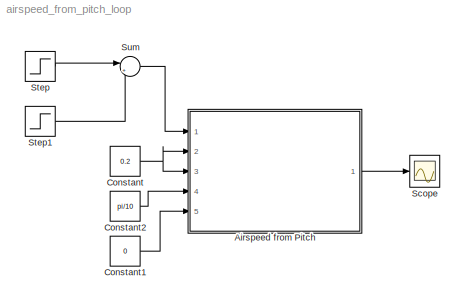
MODEL airspeed_from_pitch_loop
KIND model
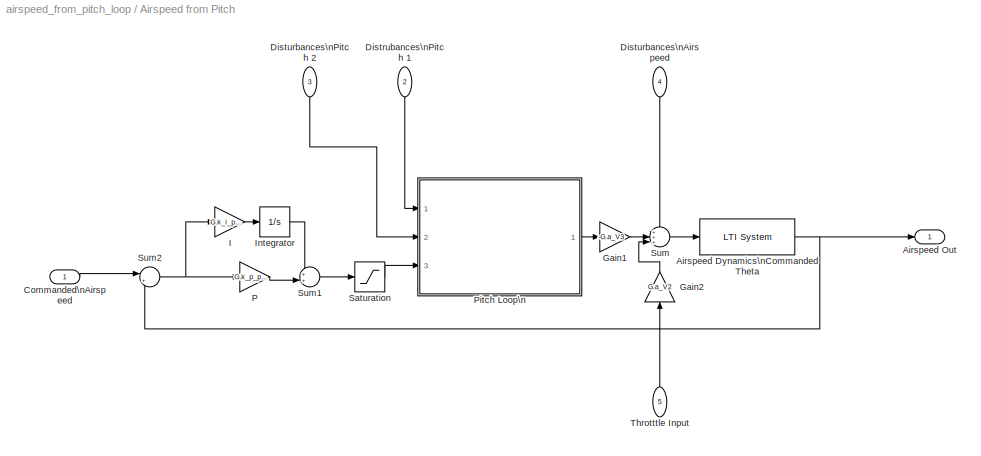
BLOCK [SubSystem] Airspeed from Pitch
  Ports = [5, 1]
  RequestExecContextInheritance = off
  SID = 60
BLOCK [Reference] Airspeed from Pitch/Airspeed Dynamics\nCommanded Theta  REF=cstblocks/LTI System
  IC = []
  Ports = [1, 1]
  SID = 31
  SourceBlock = cstblocks/LTI System
  SourceProductBaseCode = CT
  SourceProductName = Control System Toolbox
  SourceType = LTI Block
  sys = T_Va
BLOCK [Outport] Airspeed from Pitch/Airspeed Out
  IconDisplay = Port number
  SID = 70
BLOCK [Inport] Airspeed from Pitch/Commanded\nAirspeed
  IconDisplay = Port number
  SID = 66
BLOCK [Inport] Airspeed from Pitch/Distrubances\nPitch 1
  IconDisplay = Port number
  Port = 2
  SID = 67
BLOCK [Inport] Airspeed from Pitch/Disturbances\nAirspeed
  IconDisplay = Port number
  Port = 4
  SID = 69
BLOCK [Inport] Airspeed from Pitch/Disturbances\nPitch 2
  IconDisplay = Port number
  Port = 3
  SID = 68
BLOCK [Gain] Airspeed from Pitch/Gain1
  Gain = -G.a_V3
  OutDataTypeStr = Inherit: Inherit via internal rule
  ParamDataTypeStr = Inherit: Inherit via internal rule
  SID = 79
  SaturateOnIntegerOverflow = off
BLOCK [Gain] Airspeed from Pitch/Gain2
  Gain = G.a_V2
  OutDataTypeStr = Inherit: Inherit via internal rule
  ParamDataTypeStr = Inherit: Inherit via internal rule
  SID = 81
  SaturateOnIntegerOverflow = off
BLOCK [Gain] Airspeed from Pitch/I
  Gain = G.k_i_pitch_airspeed
  OutDataTypeStr = Inherit: Inherit via internal rule
  ParamDataTypeStr = Inherit: Inherit via internal rule
  SID = 36
  SaturateOnIntegerOverflow = off
BLOCK [Integrator] Airspeed from Pitch/Integrator
  Ports = [1, 1]
  SID = 37
BLOCK [Gain] Airspeed from Pitch/P
  Gain = G.k_p_pitch_airspeed
  OutDataTypeStr = Inherit: Inherit via internal rule
  ParamDataTypeStr = Inherit: Inherit via internal rule
  SID = 35
  SaturateOnIntegerOverflow = off
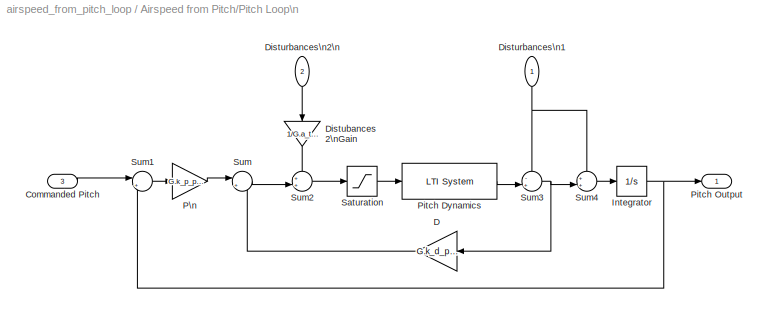
BLOCK [SubSystem] Airspeed from Pitch/Pitch Loop\n
  Ports = [3, 1]
  RequestExecContextInheritance = off
  SID = 21
BLOCK [Inport] Airspeed from Pitch/Pitch Loop\n/Commanded Pitch
  IconDisplay = Port number
  Port = 3
  SID = 23
BLOCK [Gain] Airspeed from Pitch/Pitch Loop\n/D
  Gain = G.k_d_pitch
  OutDataTypeStr = Inherit: Inherit via internal rule
  ParamDataTypeStr = Inherit: Inherit via internal rule
  SID = 2
  SaturateOnIntegerOverflow = off
BLOCK [Gain] Airspeed from Pitch/Pitch Loop\n/Distubances 2\nGain
  Gain = 1/G.a_theta3
  OutDataTypeStr = Inherit: Inherit via internal rule
  ParamDataTypeStr = Inherit: Inherit via internal rule
  SID = 14
  SaturateOnIntegerOverflow = off
BLOCK [Inport] Airspeed from Pitch/Pitch Loop\n/Disturbances\n1
  IconDisplay = Port number
  SID = 26
BLOCK [Inport] Airspeed from Pitch/Pitch Loop\n/Disturbances\n2\n
  IconDisplay = Port number
  Port = 2
  SID = 22
BLOCK [Integrator] Airspeed from Pitch/Pitch Loop\n/Integrator
  Ports = [1, 1]
  SID = 4
BLOCK [Gain] Airspeed from Pitch/Pitch Loop\n/P\n
  Gain = G.k_p_pitch
  OutDataTypeStr = Inherit: Inherit via internal rule
  ParamDataTypeStr = Inherit: Inherit via internal rule
  SID = 6
  SaturateOnIntegerOverflow = off
BLOCK [Reference] Airspeed from Pitch/Pitch Loop\n/Pitch Dynamics  REF=cstblocks/LTI System
  IC = []
  Ports = [1, 1]
  SID = 1
  SourceBlock = cstblocks/LTI System
  SourceProductBaseCode = CT
  SourceProductName = Control System Toolbox
  SourceType = LTI Block
  sys = T_theta_dot_delta_e
BLOCK [Outport] Airspeed from Pitch/Pitch Loop\n/Pitch Output
  IconDisplay = Port number
  SID = 24
BLOCK [Saturate] Airspeed from Pitch/Pitch Loop\n/Saturation
  InputPortMap = u0
  LowerLimit = -G.delta_a_max
  Ports = [1, 1]
  SID = 20
  UpperLimit = G.delta_e_max
BLOCK [Sum] Airspeed from Pitch/Pitch Loop\n/Sum
  IconShape = round
  InputSameDT = off
  Inputs = |+-
  OutDataTypeStr = Inherit: Inherit via internal rule
  Ports = [2, 1]
  SID = 3
  SaturateOnIntegerOverflow = off
BLOCK [Sum] Airspeed from Pitch/Pitch Loop\n/Sum1
  IconShape = round
  InputSameDT = off
  Inputs = |+-
  OutDataTypeStr = Inherit: Inherit via internal rule
  Ports = [2, 1]
  SID = 5
  SaturateOnIntegerOverflow = off
BLOCK [Sum] Airspeed from Pitch/Pitch Loop\n/Sum2
  IconShape = round
  InputSameDT = off
  Inputs = ++|
  OutDataTypeStr = Inherit: Inherit via internal rule
  Ports = [2, 1]
  SID = 13
  SaturateOnIntegerOverflow = off
BLOCK [Sum] Airspeed from Pitch/Pitch Loop\n/Sum3
  IconShape = round
  InputSameDT = off
  Inputs = -+|
  OutDataTypeStr = Inherit: Inherit via internal rule
  Ports = [2, 1]
  SID = 25
  SaturateOnIntegerOverflow = off
BLOCK [Sum] Airspeed from Pitch/Pitch Loop\n/Sum4
  IconShape = round
  InputSameDT = off
  Inputs = ++|
  OutDataTypeStr = Inherit: Inherit via internal rule
  Ports = [2, 1]
  SID = 27
  SaturateOnIntegerOverflow = off
BLOCK [Saturate] Airspeed from Pitch/Saturation
  InputPortMap = u0
  LowerLimit = -pi/4
  Ports = [1, 1]
  SID = 74
  UpperLimit = pi/4
BLOCK [Sum] Airspeed from Pitch/Sum
  IconShape = round
  InputSameDT = off
  Inputs = +++|
  OutDataTypeStr = Inherit: Inherit via internal rule
  Ports = [3, 1]
  SID = 30
  SaturateOnIntegerOverflow = off
BLOCK [Sum] Airspeed from Pitch/Sum1
  IconShape = round
  InputSameDT = off
  Inputs = ++|
  OutDataTypeStr = Inherit: Inherit via internal rule
  Ports = [2, 1]
  SID = 34
  SaturateOnIntegerOverflow = off
BLOCK [Sum] Airspeed from Pitch/Sum2
  IconShape = round
  InputSameDT = off
  Inputs = |+-
  OutDataTypeStr = Inherit: Inherit via internal rule
  Ports = [2, 1]
  SID = 39
  SaturateOnIntegerOverflow = off
BLOCK [Inport] Airspeed from Pitch/Throtttle Input
  IconDisplay = Port number
  Port = 5
  SID = 80
BLOCK [Constant] Constant
  SID = 73
  Value = 0.2
BLOCK [Constant] Constant1
  SID = 75
  Value = 0
BLOCK [Constant] Constant2
  SID = 84
  Value = pi/10
BLOCK [Scope] Scope
  Floating = off
  NumInputPorts = 1
  Ports = [1]
  SID = 9
  ScopeSpecificationString = Simulink.scopes.TimeScopeBlockCfg('CurrentConfiguration', extmgr.ConfigurationSet(extmgr.Configuration('Core','General UI',true),extmgr.Configuration('Core','Source UI',true),extmgr.Configuration('Sources','WiredSimulink',true),extmgr.Configuration('Visuals','Time Domain',true,'SerializedDisplays',{struct('MinYLimReal','-0.9562','MaxYLimReal','5.65739','YLabelReal','','MinYLimMag','0.00000','MaxYL...<+1715ch>
BLOCK [Step] Step
  After = 10
  SID = 77
  SampleTime = 0
BLOCK [Step] Step1
  After = 10
  SID = 85
  SampleTime = 0
  Time = 30
BLOCK [Sum] Sum
  IconShape = round
  InputSameDT = off
  Inputs = |++
  OutDataTypeStr = Inherit: Inherit via internal rule
  Ports = [2, 1]
  SID = 86
  SaturateOnIntegerOverflow = off
NET Airspeed from Pitch/Airspeed Dynamics\nCommanded Theta:1 -> Airspeed from Pitch/Airspeed Out:1, Airspeed from Pitch/Sum2:2
LINE Airspeed from Pitch/Commanded\nAirspeed:1 -> Airspeed from Pitch/Sum2:1
LINE Airspeed from Pitch/Distrubances\nPitch 1:1 -> Airspeed from Pitch/Pitch Loop\n:1
LINE Airspeed from Pitch/Disturbances\nAirspeed:1 -> Airspeed from Pitch/Sum:1
LINE Airspeed from Pitch/Disturbances\nPitch 2:1 -> Airspeed from Pitch/Pitch Loop\n:2
LINE Airspeed from Pitch/Gain1:1 -> Airspeed from Pitch/Sum:2
LINE Airspeed from Pitch/Gain2:1 -> Airspeed from Pitch/Sum:3
LINE Airspeed from Pitch/I:1 -> Airspeed from Pitch/Integrator:1
LINE Airspeed from Pitch/Integrator:1 -> Airspeed from Pitch/Sum1:1
LINE Airspeed from Pitch/P:1 -> Airspeed from Pitch/Sum1:2
LINE Airspeed from Pitch/Pitch Loop\n/Commanded Pitch:1 -> Airspeed from Pitch/Pitch Loop\n/Sum1:1
LINE Airspeed from Pitch/Pitch Loop\n/D:1 -> Airspeed from Pitch/Pitch Loop\n/Sum:2
LINE Airspeed from Pitch/Pitch Loop\n/Distubances 2\nGain:1 -> Airspeed from Pitch/Pitch Loop\n/Sum2:1
NET Airspeed from Pitch/Pitch Loop\n/Disturbances\n1:1 -> Airspeed from Pitch/Pitch Loop\n/Sum3:1, Airspeed from Pitch/Pitch Loop\n/Sum4:1
LINE Airspeed from Pitch/Pitch Loop\n/Disturbances\n2\n:1 -> Airspeed from Pitch/Pitch Loop\n/Distubances 2\nGain:1
NET Airspeed from Pitch/Pitch Loop\n/Integrator:1 -> Airspeed from Pitch/Pitch Loop\n/Pitch Output:1, Airspeed from Pitch/Pitch Loop\n/Sum1:2
LINE Airspeed from Pitch/Pitch Loop\n/P\n:1 -> Airspeed from Pitch/Pitch Loop\n/Sum:1
LINE Airspeed from Pitch/Pitch Loop\n/Pitch Dynamics:1 -> Airspeed from Pitch/Pitch Loop\n/Sum3:2
LINE Airspeed from Pitch/Pitch Loop\n/Saturation:1 -> Airspeed from Pitch/Pitch Loop\n/Pitch Dynamics:1
LINE Airspeed from Pitch/Pitch Loop\n/Sum1:1 -> Airspeed from Pitch/Pitch Loop\n/P\n:1
LINE Airspeed from Pitch/Pitch Loop\n/Sum2:1 -> Airspeed from Pitch/Pitch Loop\n/Saturation:1
NET Airspeed from Pitch/Pitch Loop\n/Sum3:1 -> Airspeed from Pitch/Pitch Loop\n/D:1, Airspeed from Pitch/Pitch Loop\n/Sum4:2
LINE Airspeed from Pitch/Pitch Loop\n/Sum4:1 -> Airspeed from Pitch/Pitch Loop\n/Integrator:1
LINE Airspeed from Pitch/Pitch Loop\n/Sum:1 -> Airspeed from Pitch/Pitch Loop\n/Sum2:2
LINE Airspeed from Pitch/Pitch Loop\n:1 -> Airspeed from Pitch/Gain1:1
LINE Airspeed from Pitch/Saturation:1 -> Airspeed from Pitch/Pitch Loop\n:3
LINE Airspeed from Pitch/Sum1:1 -> Airspeed from Pitch/Saturation:1
NET Airspeed from Pitch/Sum2:1 -> Airspeed from Pitch/I:1, Airspeed from Pitch/P:1
LINE Airspeed from Pitch/Sum:1 -> Airspeed from Pitch/Airspeed Dynamics\nCommanded Theta:1
LINE Airspeed from Pitch/Throtttle Input:1 -> Airspeed from Pitch/Gain2:1
LINE Airspeed from Pitch:1 -> Scope:1
LINE Constant1:1 -> Airspeed from Pitch:5
LINE Constant2:1 -> Airspeed from Pitch:4
NET Constant:1 -> Airspeed from Pitch:2, Airspeed from Pitch:3
LINE Step1:1 -> Sum:2
LINE Step:1 -> Sum:1
LINE Sum:1 -> Airspeed from Pitch:1
note: NET lines group one-source signal fan-out (src -> all destinations, sorted); 1:1 wires keep LINE
